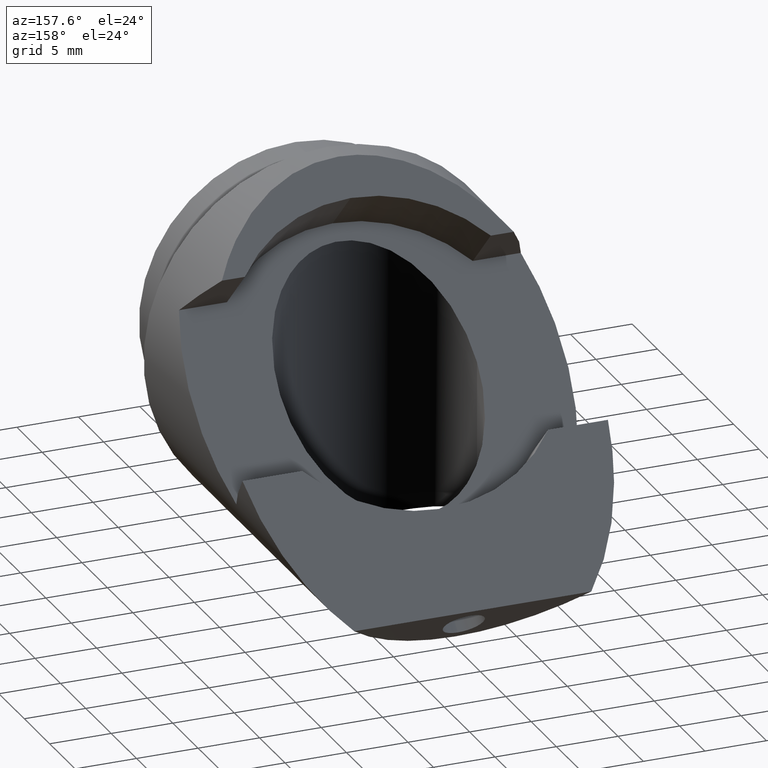
[diagram: clean part render]
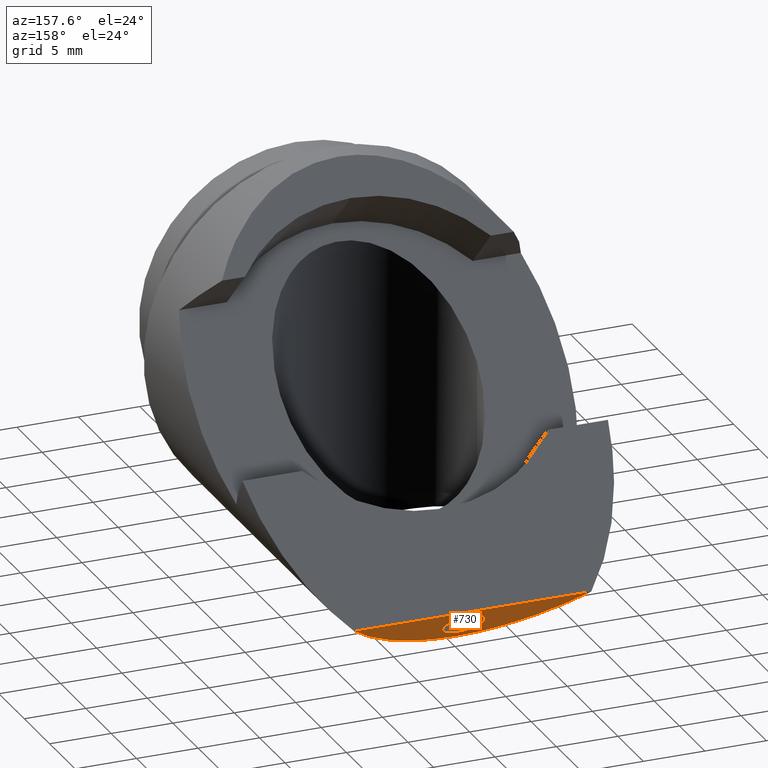
[diagram: same view with one face highlighted and labeled with its STEP entity id]
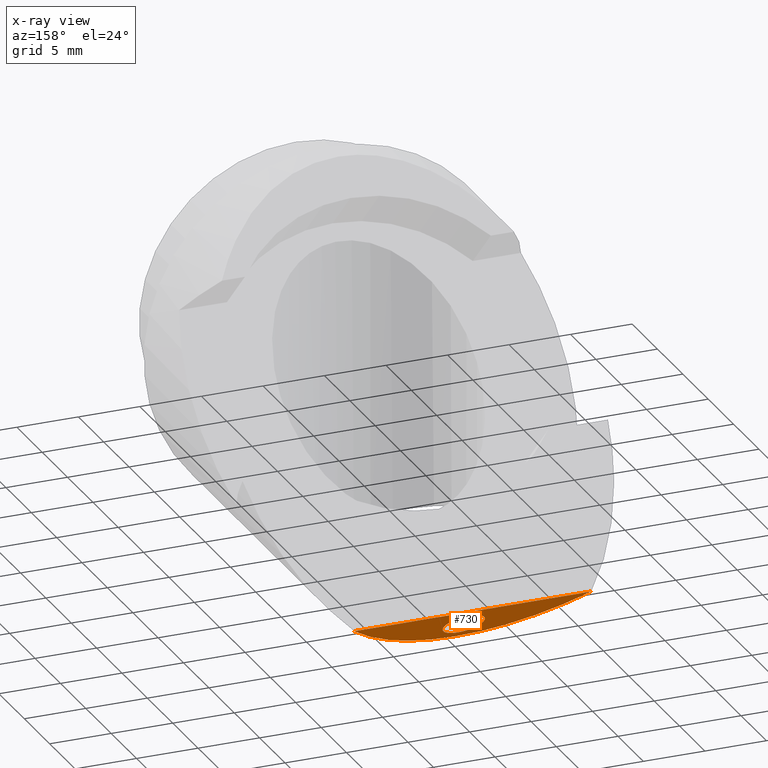
[diagram: x-ray of the same camera — body ghosted, the highlighted face saturated]
A machine part, auxiliary view. The second image highlights one B-rep face of the part: STEP entity #730.
The next image is the same camera in x-ray: the body ghosted, the highlighted face saturated — about 0% of this face is hidden behind the body in this view.
In plain terms, the highlighted planar face has unit normal (0, 0.7071, -0.7071).
Its self-contained STEP definition (entity closure, byte-faithful):
#11 = FACE_BOUND ( 'NONE', #399, .T. ) ;
#66 = DIRECTION ( 'NONE',  ( -0.0000000000000000000, 0.7071067811865434600, -0.7071067811865516800 ) ) ;
#97 = VERTEX_POINT ( 'NONE', #933 ) ;
#138 = FACE_OUTER_BOUND ( 'NONE', #353, .T. ) ;
#183 = DIRECTION ( 'NONE',  ( -1.000000000000000000, 0.0000000000000000000, 0.0000000000000000000 ) ) ;
#188 = VECTOR ( 'NONE', #183, 1000.000000000000000 ) ;
#192 = DIRECTION ( 'NONE',  ( 0.0000000000000000000, 0.7071067811865512400, 0.7071067811865438000 ) ) ;
#196 = VERTEX_POINT ( 'NONE', #577 ) ;
#197 = LINE ( 'NONE', #502, #188 ) ;
#199 = CARTESIAN_POINT ( 'NONE',  ( 0.0000000000000000000, 25.00000000000000700, -15.00000000000000000 ) ) ;
#225 = AXIS2_PLACEMENT_3D ( 'NONE', #916, #66, #444 ) ;
#245 = EDGE_CURVE ( 'NONE', #539, #196, #197, .T. ) ;
#276 = CARTESIAN_POINT ( 'NONE',  ( -3.558319546696726100, 25.00000000000001100, -15.00000000000000200 ) ) ;
#299 = VERTEX_POINT ( 'NONE', #953 ) ;
#313 = CIRCLE ( 'NONE', #225, 1.649999999999987500 ) ;
#320 = ORIENTED_EDGE ( 'NONE', *, *, #946, .F. ) ;
#352 = CARTESIAN_POINT ( 'NONE',  ( 6.902635156328075000, 26.21539750681844100, -13.78460249318158400 ) ) ;
#353 = EDGE_LOOP ( 'NONE', ( #620, #701, #790 ) ) ;
#357 = CARTESIAN_POINT ( 'NONE',  ( 0.0000000000000000000, 25.00000000000000700, -15.00000000000000000 ) ) ;
#370 = DIRECTION ( 'NONE',  ( 0.0000000000000000000, 0.7071067811865434600, -0.7071067811865516800 ) ) ;
#389 = EDGE_CURVE ( 'NONE', #97, #299, #313, .T. ) ;
#399 = EDGE_LOOP ( 'NONE', ( #576, #320 ) ) ;
#432 =( BOUNDED_CURVE ( )  B_SPLINE_CURVE ( 3, ( #599, #352, #900, #357 ),
 .UNSPECIFIED., .F., .T. ) 
 B_SPLINE_CURVE_WITH_KNOTS ( ( 4, 4 ),
 ( 5.586022173537368300, 6.283185307179586200 ),
 .UNSPECIFIED. ) 
 CURVE ( )  GEOMETRIC_REPRESENTATION_ITEM ( )  RATIONAL_B_SPLINE_CURVE ( ( 1.000000000000000000, 0.9599054302165208600, 0.9599054302165208600, 1.000000000000000000 ) ) 
 REPRESENTATION_ITEM ( '' )  );
#444 = DIRECTION ( 'NONE',  ( 0.0000000000000000000, 0.7071067811865512400, 0.7071067811865438000 ) ) ;
#499 = CARTESIAN_POINT ( 'NONE',  ( 0.0000000000000000000, 26.73223304703349600, -13.26776695296650000 ) ) ;
#500 = CARTESIAN_POINT ( 'NONE',  ( 9.630680142128964500, 28.49999999999988300, -11.50000000000015800 ) ) ;
#502 = CARTESIAN_POINT ( 'NONE',  ( 80.54744331758767800, 28.49999999999988300, -11.50000000000015800 ) ) ;
#536 = AXIS2_PLACEMENT_3D ( 'NONE', #499, #663, #192 ) ;
#539 = VERTEX_POINT ( 'NONE', #500 ) ;
#557 =( BOUNDED_CURVE ( )  B_SPLINE_CURVE ( 3, ( #199, #276, #751, #667 ),
 .UNSPECIFIED., .F., .F. ) 
 B_SPLINE_CURVE_WITH_KNOTS ( ( 4, 4 ),
 ( 0.0000000000000000000, 0.6971631336422135000 ),
 .UNSPECIFIED. ) 
 CURVE ( )  GEOMETRIC_REPRESENTATION_ITEM ( )  RATIONAL_B_SPLINE_CURVE ( ( 1.000000000000000000, 0.9599054302165213000, 0.9599054302165213000, 1.000000000000000000 ) ) 
 REPRESENTATION_ITEM ( '' )  );
#576 = ORIENTED_EDGE ( 'NONE', *, *, #389, .F. ) ;
#577 = CARTESIAN_POINT ( 'NONE',  ( -9.630680142128881000, 28.49999999999988300, -11.50000000000015800 ) ) ;
#581 = EDGE_CURVE ( 'NONE', #539, #630, #432, .T. ) ;
#599 = CARTESIAN_POINT ( 'NONE',  ( 9.630680142128964500, 28.49999999999988300, -11.50000000000015800 ) ) ;
#613 = PLANE ( 'NONE',  #787 ) ;
#620 = ORIENTED_EDGE ( 'NONE', *, *, #581, .T. ) ;
#630 = VERTEX_POINT ( 'NONE', #823 ) ;
#650 = EDGE_CURVE ( 'NONE', #630, #196, #557, .T. ) ;
#663 = DIRECTION ( 'NONE',  ( -0.0000000000000000000, 0.7071067811865434600, -0.7071067811865516800 ) ) ;
#667 = CARTESIAN_POINT ( 'NONE',  ( -9.630680142128881000, 28.49999999999988300, -11.50000000000015800 ) ) ;
#701 = ORIENTED_EDGE ( 'NONE', *, *, #650, .T. ) ;
#730 = ADVANCED_FACE ( 'NONE', ( #11, #138 ), #613, .T. ) ;
#751 = CARTESIAN_POINT ( 'NONE',  ( -6.902635156328030600, 26.21539750681843000, -13.78460249318159800 ) ) ;
#771 = DIRECTION ( 'NONE',  ( 0.0000000000000000000, 0.7071067811865516800, 0.7071067811865434600 ) ) ;
#787 = AXIS2_PLACEMENT_3D ( 'NONE', #844, #370, #771 ) ;
#790 = ORIENTED_EDGE ( 'NONE', *, *, #245, .F. ) ;
#799 = CIRCLE ( 'NONE', #536, 1.649999999999987500 ) ;
#823 = CARTESIAN_POINT ( 'NONE',  ( 0.0000000000000000000, 25.00000000000000700, -15.00000000000000000 ) ) ;
#844 = CARTESIAN_POINT ( 'NONE',  ( 80.54744331758767800, 28.49999999999988300, -11.50000000000015800 ) ) ;
#900 = CARTESIAN_POINT ( 'NONE',  ( 3.558319546696749200, 25.00000000000000700, -15.00000000000000200 ) ) ;
#916 = CARTESIAN_POINT ( 'NONE',  ( 0.0000000000000000000, 26.73223304703349600, -13.26776695296650000 ) ) ;
#933 = CARTESIAN_POINT ( 'NONE',  ( 0.0000000000000000000, 27.89895923599129900, -12.10104076400871000 ) ) ;
#946 = EDGE_CURVE ( 'NONE', #299, #97, #799, .T. ) ;
#953 = CARTESIAN_POINT ( 'NONE',  ( 2.020667218593124100E-016, 25.56550685807569300, -14.43449314192429100 ) ) ;